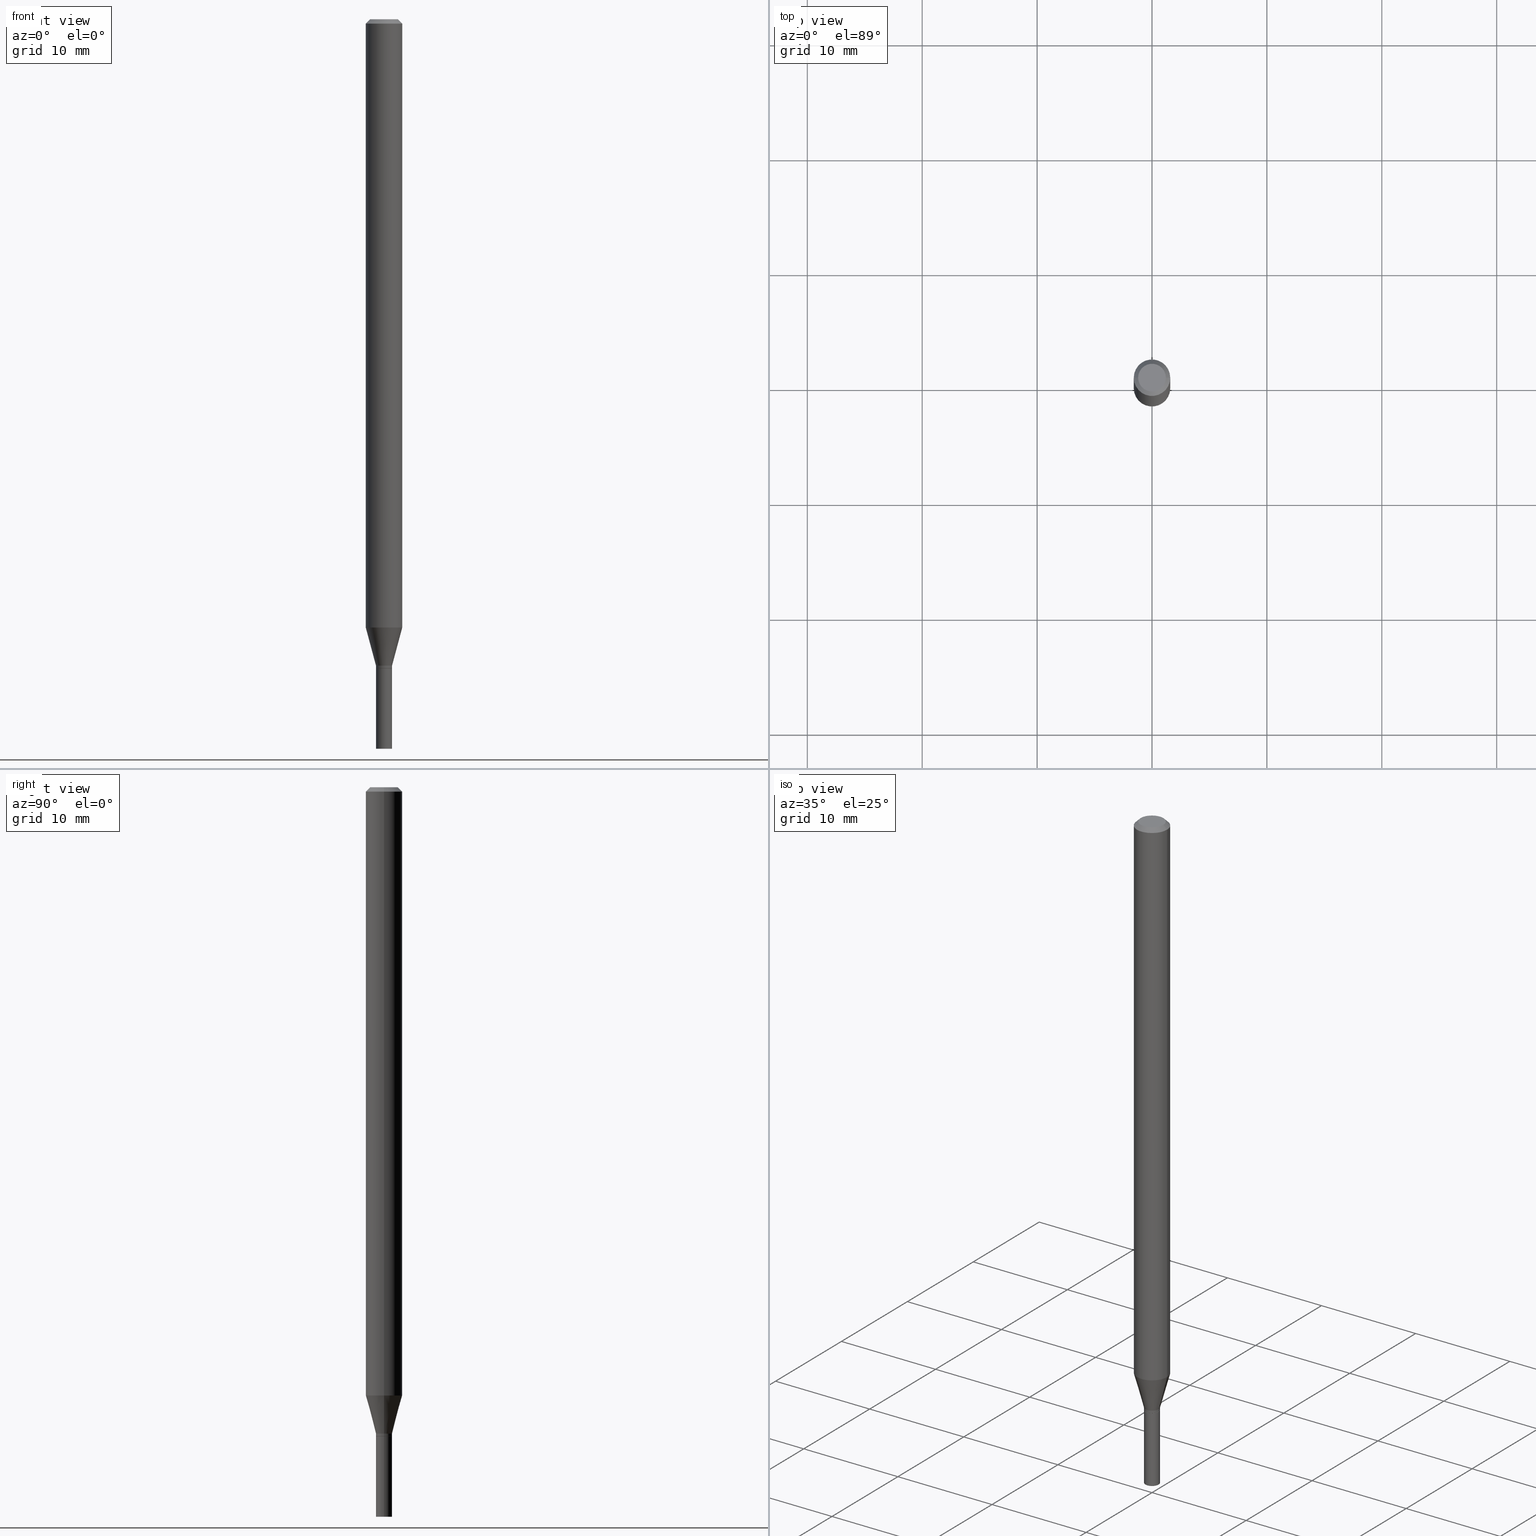
[diagram: canonical four-view strip — front | top / right | iso, engineering-drawing reading convention]
A machine part, canonical four-view strip (front | top / right | iso — engineering-drawing reading convention). The complete STEP part file that produces these views, byte-faithful:
ISO-10303-21;
HEADER;
FILE_DESCRIPTION (( 'STEP AP203' ),
    '1' );
FILE_NAME ('00595.STEP',
    '2024-03-19T21:55:43',
    ( '' ),
    ( '' ),
    'SwSTEP 2.0',
    'SolidWorks 2023',
    '' );
FILE_SCHEMA (( 'CONFIG_CONTROL_DESIGN' ));
ENDSEC;

DATA;
#1 = DIRECTION ( 'NONE',  ( -2.445468806185136597E-29, 3.491481338843145583E-15, 1.000000000000000000 ) ) ;
#2 = ORIENTED_EDGE ( 'NONE', *, *, #121, .F. ) ;
#3 = DIRECTION ( 'NONE',  ( 1.000000000000000000, -6.982962677686265133E-15, 0.000000000000000000 ) ) ;
#4 = EDGE_LOOP ( 'NONE', ( #402, #162, #17, #22 ) ) ;
#5 = DIRECTION ( 'NONE',  ( -2.445468806185136597E-29, 3.491481338843145583E-15, 1.000000000000000000 ) ) ;
#6 = AXIS2_PLACEMENT_3D ( 'NONE', #265, #425, #62 ) ;
#7 = AXIS2_PLACEMENT_3D ( 'NONE', #426, #383, #307 ) ;
#8 = DIRECTION ( 'NONE',  ( 1.000000000000000000, -6.982962677686267499E-15, 4.884662768193073002E-29 ) ) ;
#9 = CC_DESIGN_APPROVAL ( #179, ( #46 ) ) ;
#10 = VERTEX_POINT ( 'NONE', #86 ) ;
#11 = ADVANCED_FACE ( 'NONE', ( #141 ), #298, .T. ) ;
#12 = DIRECTION ( 'NONE',  ( -2.445468806185136597E-29, 3.491481338843145583E-15, 1.000000000000000000 ) ) ;
#13 = ORIENTED_EDGE ( 'NONE', *, *, #132, .F. ) ;
#14 = CARTESIAN_POINT ( 'NONE',  ( -2.090350035857389078E-45, 2.984465851041258834E-31, 8.547849927876517898E-17 ) ) ;
#15 = DIRECTION ( 'NONE',  ( 1.000000000000000000, -6.982962677686266711E-15, 4.876176775795935793E-29 ) ) ;
#16 = CARTESIAN_POINT ( 'NONE',  ( 5.441168093761929600E-29, -7.768545978926000114E-15, -2.225000000000000533 ) ) ;
#17 = ORIENTED_EDGE ( 'NONE', *, *, #442, .T. ) ;
#18 = FACE_OUTER_BOUND ( 'NONE', #459, .T. ) ;
#19 = CONICAL_SURFACE ( 'NONE', #456, 0.02699999999999999969, 0.7853981633974739252 ) ;
#20 = EDGE_LOOP ( 'NONE', ( #244, #381, #225, #338 ) ) ;
#21 = EDGE_CURVE ( 'NONE', #464, #146, #115, .T. ) ;
#22 = ORIENTED_EDGE ( 'NONE', *, *, #213, .F. ) ;
#23 = DIRECTION ( 'NONE',  ( 0.7071067811865454633, -7.319954787623246579E-15, -0.7071067811865493491 ) ) ;
#24 = PERSON_AND_ORGANIZATION_ROLE ( 'creator' ) ;
#25 = DIRECTION ( 'NONE',  ( -2.445468806185136597E-29, 3.491481338843145583E-15, 1.000000000000000000 ) ) ;
#26 = ORIENTED_EDGE ( 'NONE', *, *, #371, .T. ) ;
#27 = LINE ( 'NONE', #299, #327 ) ;
#28 = APPROVAL_DATE_TIME ( #343, #33 ) ;
#29 = CIRCLE ( 'NONE', #319, 0.02750000000000019790 ) ;
#30 =( GEOMETRIC_REPRESENTATION_CONTEXT ( 3 ) GLOBAL_UNCERTAINTY_ASSIGNED_CONTEXT ( ( #34 ) ) GLOBAL_UNIT_ASSIGNED_CONTEXT ( ( #346, #339, #444 ) ) REPRESENTATION_CONTEXT ( 'NONE', 'WORKASPACE' ) );
#31 = DATE_TIME_ROLE ( 'classification_date' ) ;
#32 = DIRECTION ( 'NONE',  ( -2.445468806185136597E-29, 3.491481338843145583E-15, 1.000000000000000000 ) ) ;
#33 = APPROVAL ( #349, 'UNSPECIFIED' ) ;
#34 = UNCERTAINTY_MEASURE_WITH_UNIT (LENGTH_MEASURE( 1.000000000000000082E-05 ), #346, 'distance_accuracy_value', 'NONE');
#35 = DIRECTION ( 'NONE',  ( 1.000000000000000000, -6.982962677686244622E-15, 0.000000000000000000 ) ) ;
#36 = PLANE ( 'NONE',  #45 ) ;
#37 = CIRCLE ( 'NONE', #394, 0.06250000000000000000 ) ;
#38 = ORIENTED_EDGE ( 'NONE', *, *, #124, .F. ) ;
#39 = EDGE_CURVE ( 'NONE', #403, #329, #378, .T. ) ;
#40 = VERTEX_POINT ( 'NONE', #301 ) ;
#41 = DIRECTION ( 'NONE',  ( -2.445468806185136597E-29, 3.491481338843145583E-15, 1.000000000000000000 ) ) ;
#42 = CALENDAR_DATE ( 2024, 19, 3 ) ;
#43 =( LENGTH_UNIT ( ) NAMED_UNIT ( * ) SI_UNIT ( $, .METRE. ) );
#44 = DIRECTION ( 'NONE',  ( 1.000000000000000000, -6.982962677686267499E-15, 4.884662768193073002E-29 ) ) ;
#45 = AXIS2_PLACEMENT_3D ( 'NONE', #345, #296, #119 ) ;
#46 = PRODUCT_DEFINITION_FORMATION_WITH_SPECIFIED_SOURCE ( 'ANY', '', #454, .NOT_KNOWN. ) ;
#47 = DIRECTION ( 'NONE',  ( 1.000000000000000000, -6.982962677686266711E-15, 0.000000000000000000 ) ) ;
#48 = ORIENTED_EDGE ( 'NONE', *, *, #386, .F. ) ;
#49 = DIRECTION ( 'NONE',  ( 1.000000000000000000, -6.982962677686261189E-15, 0.000000000000000000 ) ) ;
#50 = DIRECTION ( 'NONE',  ( 2.445468806185136597E-29, -3.491481338843145583E-15, -1.000000000000000000 ) ) ;
#51 = ADVANCED_FACE ( 'NONE', ( #18 ), #287, .T. ) ;
#52 = CARTESIAN_POINT ( 'NONE',  ( 5.441168093761929600E-29, -7.768545978925998537E-15, -2.225000000000000089 ) ) ;
#53 = ORIENTED_EDGE ( 'NONE', *, *, #371, .F. ) ;
#54 = ADVANCED_FACE ( 'NONE', ( #193 ), #353, .T. ) ;
#55 = CONICAL_SURFACE ( 'NONE', #309, 0.02750000000000019790, 0.2617993877991500740 ) ;
#56 = LOCAL_TIME ( 17, 55, 43.00000000000000000, #294 ) ;
#57 = LINE ( 'NONE', #397, #111 ) ;
#58 = ORIENTED_EDGE ( 'NONE', *, *, #166, .F. ) ;
#59 = APPROVAL_ROLE ( '' ) ;
#60 = ORIENTED_EDGE ( 'NONE', *, *, #172, .F. ) ;
#61 = DIRECTION ( 'NONE',  ( -2.445468806185136877E-29, 3.491481338843145188E-15, 1.000000000000000000 ) ) ;
#62 = DIRECTION ( 'NONE',  ( 1.000000000000000000, -6.982962677686279332E-15, 0.000000000000000000 ) ) ;
#63 = ORIENTED_EDGE ( 'NONE', *, *, #67, .T. ) ;
#64 = DATE_TIME_ROLE ( 'creation_date' ) ;
#65 = CC_DESIGN_PERSON_AND_ORGANIZATION_ASSIGNMENT ( #445, #24, ( #46 ) ) ;
#66 = VECTOR ( 'NONE', #332, 39.37007874015748143 ) ;
#67 = EDGE_CURVE ( 'NONE', #88, #139, #421, .T. ) ;
#68 = VERTEX_POINT ( 'NONE', #258 ) ;
#69 = CIRCLE ( 'NONE', #277, 0.04749999999999999362 ) ;
#70 = VECTOR ( 'NONE', #107, 39.37007874015748854 ) ;
#71 = ORIENTED_EDGE ( 'NONE', *, *, #226, .T. ) ;
#72 = SHAPE_DEFINITION_REPRESENTATION ( #206, #463 ) ;
#73 = CARTESIAN_POINT ( 'NONE',  ( -2.090350035857389078E-45, 2.984465851041258834E-31, 8.547849927876517898E-17 ) ) ;
#74 = DIRECTION ( 'NONE',  ( 2.438088387897960049E-29, -3.491481338843145188E-15, -1.000000000000000000 ) ) ;
#75 = ORIENTED_EDGE ( 'NONE', *, *, #398, .F. ) ;
#76 = DIRECTION ( 'NONE',  ( 1.000000000000000000, -6.982962677686265922E-15, 4.876176775795935793E-29 ) ) ;
#77 = AXIS2_PLACEMENT_3D ( 'NONE', #236, #222, #417 ) ;
#78 = VECTOR ( 'NONE', #235, 39.37007874015747433 ) ;
#79 = EDGE_LOOP ( 'NONE', ( #375, #410 ) ) ;
#80 = EDGE_CURVE ( 'NONE', #146, #240, #466, .T. ) ;
#81 = ORIENTED_EDGE ( 'NONE', *, *, #344, .F. ) ;
#82 = DIRECTION ( 'NONE',  ( -0.2588190451025213501, 5.211531920934551042E-15, 0.9659258262890682012 ) ) ;
#83 = AXIS2_PLACEMENT_3D ( 'NONE', #195, #32, #133 ) ;
#84 = SECURITY_CLASSIFICATION ( '', '', #462 ) ;
#85 = DIRECTION ( 'NONE',  ( -2.445468806185136597E-29, 3.491481338843145583E-15, 1.000000000000000000 ) ) ;
#86 = CARTESIAN_POINT ( 'NONE',  ( 0.02750000000000000014, -7.960577452562371818E-15, -2.225000000000000089 ) ) ;
#87 = CALENDAR_DATE ( 2024, 19, 3 ) ;
#88 = VERTEX_POINT ( 'NONE', #310 ) ;
#89 = DATE_AND_TIME ( #101, #194 ) ;
#90 = EDGE_CURVE ( 'NONE', #10, #439, #446, .T. ) ;
#91 = CARTESIAN_POINT ( 'NONE',  ( 0.06250000000000000000, -4.364351673553916694E-16, 3.047610484872459871E-30 ) ) ;
#92 = APPROVAL_PERSON_ORGANIZATION ( #449, #179, #302 ) ;
#93 = ADVANCED_FACE ( 'NONE', ( #152 ), #431, .F. ) ;
#94 = EDGE_LOOP ( 'NONE', ( #255, #48 ) ) ;
#95 = CARTESIAN_POINT ( 'NONE',  ( 5.416713405700078055E-29, -7.733631165537568465E-15, -2.215000000000000302 ) ) ;
#96 = COORDINATED_UNIVERSAL_TIME_OFFSET ( 5, 0, .BEHIND. ) ;
#97 = ORIENTED_EDGE ( 'NONE', *, *, #326, .F. ) ;
#98 = EDGE_LOOP ( 'NONE', ( #75, #284, #116, #120 ) ) ;
#99 = FACE_OUTER_BOUND ( 'NONE', #164, .T. ) ;
#100 = CIRCLE ( 'NONE', #262, 0.02699999999999999969 ) ;
#101 = CALENDAR_DATE ( 2024, 19, 3 ) ;
#102 = PLANE ( 'NONE',  #428 ) ;
#103 = CC_DESIGN_PERSON_AND_ORGANIZATION_ASSIGNMENT ( #191, #117, ( #84 ) ) ;
#104 = DIRECTION ( 'NONE',  ( -2.438088387897960049E-29, 3.491481338843145188E-15, 1.000000000000000000 ) ) ;
#105 = ADVANCED_FACE ( 'NONE', ( #337 ), #157, .F. ) ;
#106 = LINE ( 'NONE', #175, #66 ) ;
#107 = DIRECTION ( 'NONE',  ( -0.7071067811865454633, 2.468850131082235761E-15, -0.7071067811865493491 ) ) ;
#108 = DIRECTION ( 'NONE',  ( 1.000000000000000000, -6.982962677686266711E-15, 4.876176775795935793E-29 ) ) ;
#109 = AXIS2_PLACEMENT_3D ( 'NONE', #113, #336, #441 ) ;
#110 = EDGE_LOOP ( 'NONE', ( #38, #365 ) ) ;
#111 = VECTOR ( 'NONE', #280, 39.37007874015748143 ) ;
#112 = DIRECTION ( 'NONE',  ( -2.445468806185136597E-29, 3.491481338843145583E-15, 1.000000000000000000 ) ) ;
#113 = CARTESIAN_POINT ( 'NONE',  ( 3.668203209277705088E-31, -5.237222008264718399E-17, -0.01499999999999999944 ) ) ;
#114 = DIRECTION ( 'NONE',  ( -2.445468806185136597E-29, 3.491481338843145583E-15, 1.000000000000000000 ) ) ;
#115 = LINE ( 'NONE', #227, #360 ) ;
#116 = ORIENTED_EDGE ( 'NONE', *, *, #39, .T. ) ;
#117 = PERSON_AND_ORGANIZATION_ROLE ( 'classification_officer' ) ;
#118 = AXIS2_PLACEMENT_3D ( 'NONE', #399, #351, #155 ) ;
#119 = DIRECTION ( 'NONE',  ( 1.000000000000000000, -6.982962677686265922E-15, 4.876176775795935793E-29 ) ) ;
#120 = ORIENTED_EDGE ( 'NONE', *, *, #359, .F. ) ;
#121 = EDGE_CURVE ( 'NONE', #439, #10, #257, .T. ) ;
#122 = COORDINATED_UNIVERSAL_TIME_OFFSET ( 5, 0, .BEHIND. ) ;
#123 = APPLICATION_CONTEXT ( 'configuration controlled 3d designs of mechanical parts and assemblies' ) ;
#124 = EDGE_CURVE ( 'NONE', #460, #216, #100, .T. ) ;
#125 = VECTOR ( 'NONE', #61, 39.37007874015748143 ) ;
#126 = AXIS2_PLACEMENT_3D ( 'NONE', #221, #173, #108 ) ;
#127 = CARTESIAN_POINT ( 'NONE',  ( 0.000000000000000000, 0.000000000000000000, 0.000000000000000000 ) ) ;
#128 = APPROVAL_DATE_TIME ( #306, #407 ) ;
#129 = APPROVAL_ROLE ( '' ) ;
#130 = AXIS2_PLACEMENT_3D ( 'NONE', #52, #1, #281 ) ;
#131 = AXIS2_PLACEMENT_3D ( 'NONE', #177, #12, #405 ) ;
#132 = EDGE_CURVE ( 'NONE', #88, #10, #106, .T. ) ;
#133 = DIRECTION ( 'NONE',  ( 1.000000000000000000, -6.982962677686261189E-15, 0.000000000000000000 ) ) ;
#134 = CARTESIAN_POINT ( 'NONE',  ( 5.097281921544810220E-29, -7.277567664279129507E-15, -2.084378221735090797 ) ) ;
#135 = EDGE_CURVE ( 'NONE', #464, #199, #140, .T. ) ;
#136 = CIRCLE ( 'NONE', #241, 0.02750000000000019790 ) ;
#137 = CARTESIAN_POINT ( 'NONE',  ( -0.02750000000000000014, -8.053225410682903621E-15, -2.500000000000000000 ) ) ;
#138 = ORIENTED_EDGE ( 'NONE', *, *, #432, .F. ) ;
#139 = VERTEX_POINT ( 'NONE', #137 ) ;
#140 = CIRCLE ( 'NONE', #384, 0.04749999999999999362 ) ;
#141 = FACE_OUTER_BOUND ( 'NONE', #318, .T. ) ;
#142 = APPROVAL_PERSON_ORGANIZATION ( #451, #33, #59 ) ;
#143 = ORIENTED_EDGE ( 'NONE', *, *, #386, .T. ) ;
#144 = FACE_OUTER_BOUND ( 'NONE', #4, .T. ) ;
#145 = ORIENTED_EDGE ( 'NONE', *, *, #289, .F. ) ;
#146 = VERTEX_POINT ( 'NONE', #278 ) ;
#147 = CARTESIAN_POINT ( 'NONE',  ( 0.02750000000000019790, -1.920314736363737249E-16, 1.340948613343892047E-30 ) ) ;
#148 = APPROVAL_STATUS ( 'not_yet_approved' ) ;
#149 = ADVANCED_FACE ( 'NONE', ( #99 ), #312, .T. ) ;
#150 = CALENDAR_DATE ( 2024, 19, 3 ) ;
#151 = AXIS2_PLACEMENT_3D ( 'NONE', #248, #219, #370 ) ;
#152 = FACE_OUTER_BOUND ( 'NONE', #94, .T. ) ;
#153 = VECTOR ( 'NONE', #331, 39.37007874015748143 ) ;
#154 = APPROVAL_STATUS ( 'not_yet_approved' ) ;
#155 = DIRECTION ( 'NONE',  ( 1.000000000000000000, -6.982962677686265133E-15, 0.000000000000000000 ) ) ;
#156 = DIRECTION ( 'NONE',  ( -2.445468806185136597E-29, 3.491481338843145583E-15, 1.000000000000000000 ) ) ;
#157 = PLANE ( 'NONE',  #151 ) ;
#158 = DIRECTION ( 'NONE',  ( -2.445468806185136597E-29, 3.491481338843145583E-15, 1.000000000000000000 ) ) ;
#159 = DIRECTION ( 'NONE',  ( 1.000000000000000000, -6.982962677686266711E-15, 0.000000000000000000 ) ) ;
#160 = AXIS2_PLACEMENT_3D ( 'NONE', #415, #156, #159 ) ;
#161 = FACE_OUTER_BOUND ( 'NONE', #416, .T. ) ;
#162 = ORIENTED_EDGE ( 'NONE', *, *, #359, .T. ) ;
#163 = MECHANICAL_CONTEXT ( 'NONE', #123, 'mechanical' ) ;
#164 = EDGE_LOOP ( 'NONE', ( #315, #143, #228, #2 ) ) ;
#165 = CARTESIAN_POINT ( 'NONE',  ( 3.668203209277705088E-31, -5.237222008264718399E-17, -0.01499999999999999944 ) ) ;
#166 = EDGE_CURVE ( 'NONE', #40, #240, #242, .T. ) ;
#167 = DATE_AND_TIME ( #42, #272 ) ;
#168 = APPLICATION_CONTEXT ( 'configuration controlled 3d designs of mechanical parts and assemblies' ) ;
#169 = CIRCLE ( 'NONE', #83, 0.02699999999999999969 ) ;
#170 = VECTOR ( 'NONE', #396, 39.37007874015748143 ) ;
#171 = CARTESIAN_POINT ( 'NONE',  ( -0.06250000000000000000, -3.220880732330825874E-15, -0.01499999999999999944 ) ) ;
#172 = EDGE_CURVE ( 'NONE', #223, #146, #238, .T. ) ;
#173 = DIRECTION ( 'NONE',  ( -2.445468806185136597E-29, 3.491481338843145583E-15, 1.000000000000000000 ) ) ;
#174 = CARTESIAN_POINT ( 'NONE',  ( 0.06250000000000000000, -7.714002831634521177E-15, -2.084378221735090797 ) ) ;
#175 = CARTESIAN_POINT ( 'NONE',  ( 0.02750000000000000014, -1.920314736363723444E-16, 1.340948613343882413E-30 ) ) ;
#176 = AXIS2_PLACEMENT_3D ( 'NONE', #269, #414, #379 ) ;
#177 = CARTESIAN_POINT ( 'NONE',  ( 6.113672015462842613E-29, -8.728703347107864943E-15, -2.500000000000000000 ) ) ;
#178 = CARTESIAN_POINT ( 'NONE',  ( -0.02750000000000000014, 1.953992523340275521E-16, -1.352707149820099181E-30 ) ) ;
#179 = APPROVAL ( #148, 'UNSPECIFIED' ) ;
#180 = DIRECTION ( 'NONE',  ( 1.000000000000000000, -6.982962677686261189E-15, 0.000000000000000000 ) ) ;
#181 = ORIENTED_EDGE ( 'NONE', *, *, #166, .T. ) ;
#182 = ORIENTED_EDGE ( 'NONE', *, *, #80, .T. ) ;
#183 = PERSON_AND_ORGANIZATION ( #198, #395 ) ;
#184 = ADVANCED_FACE ( 'NONE', ( #350 ), #36, .F. ) ;
#185 = ORIENTED_EDGE ( 'NONE', *, *, #90, .T. ) ;
#186 = DIRECTION ( 'NONE',  ( -2.445468806185136597E-29, 3.491481338843145583E-15, 1.000000000000000000 ) ) ;
#187 = PERSON_AND_ORGANIZATION_ROLE ( 'design_owner' ) ;
#188 = DIMENSIONAL_EXPONENTS ( 1.000000000000000000, 0.000000000000000000, 0.000000000000000000, 0.000000000000000000, 0.000000000000000000, 0.000000000000000000, 0.000000000000000000 ) ;
#189 = EDGE_LOOP ( 'NONE', ( #285, #297, #97, #145 ) ) ;
#190 = LENGTH_MEASURE_WITH_UNIT ( LENGTH_MEASURE( 0.02539999999999999897 ), #43 );
#191 = PERSON_AND_ORGANIZATION ( #198, #395 ) ;
#192 = CIRCLE ( 'NONE', #118, 0.02750000000000019790 ) ;
#193 = FACE_OUTER_BOUND ( 'NONE', #20, .T. ) ;
#194 = LOCAL_TIME ( 17, 55, 43.00000000000000000, #259 ) ;
#195 = CARTESIAN_POINT ( 'NONE',  ( 5.441168093761929600E-29, -7.768545978926000114E-15, -2.225000000000000533 ) ) ;
#196 = CC_DESIGN_DATE_AND_TIME_ASSIGNMENT ( #89, #31, ( #84 ) ) ;
#197 = DIRECTION ( 'NONE',  ( -1.000000000000000000, 6.982962677686266711E-15, 0.000000000000000000 ) ) ;
#198 = PERSON ( 'UNSPECIFIED', 'UNSPECIFIED', 'UNSPECIFIED', ('UNSPECIFIED'), ('UNSPECIFIED'), ('UNSPECIFIED') ) ;
#199 = VERTEX_POINT ( 'NONE', #232 ) ;
#200 = FACE_OUTER_BOUND ( 'NONE', #98, .T. ) ;
#201 = VECTOR ( 'NONE', #458, 39.37007874015748143 ) ;
#202 = AXIS2_PLACEMENT_3D ( 'NONE', #134, #391, #211 ) ;
#203 = LOCAL_TIME ( 17, 55, 43.00000000000000000, #204 ) ;
#204 = COORDINATED_UNIVERSAL_TIME_OFFSET ( 5, 0, .BEHIND. ) ;
#205 = EDGE_CURVE ( 'NONE', #216, #460, #169, .T. ) ;
#206 = PRODUCT_DEFINITION_SHAPE ( 'NONE', 'NONE',  #311 ) ;
#207 = ORIENTED_EDGE ( 'NONE', *, *, #380, .T. ) ;
#208 = DIRECTION ( 'NONE',  ( -2.445468806185136597E-29, 3.491481338843145583E-15, 1.000000000000000000 ) ) ;
#209 = DIRECTION ( 'NONE',  ( 0.7071067811865656694, -2.468850131082446387E-15, 0.7071067811865294761 ) ) ;
#210 = DIRECTION ( 'NONE',  ( -1.000000000000000000, 6.982962677686265922E-15, -4.876176775795935793E-29 ) ) ;
#211 = DIRECTION ( 'NONE',  ( 1.000000000000000000, -6.982962677686262766E-15, 0.000000000000000000 ) ) ;
#212 = AXIS2_PLACEMENT_3D ( 'NONE', #245, #41, #429 ) ;
#213 = EDGE_CURVE ( 'NONE', #40, #223, #251, .T. ) ;
#214 = CC_DESIGN_SECURITY_CLASSIFICATION ( #84, ( #46 ) ) ;
#215 = ORIENTED_EDGE ( 'NONE', *, *, #121, .T. ) ;
#216 = VERTEX_POINT ( 'NONE', #316 ) ;
#217 = AXIS2_PLACEMENT_3D ( 'NONE', #420, #158, #387 ) ;
#218 = ORIENTED_EDGE ( 'NONE', *, *, #289, .T. ) ;
#219 = DIRECTION ( 'NONE',  ( 2.438088387897960049E-29, -3.491481338843145188E-15, -1.000000000000000000 ) ) ;
#220 = CC_DESIGN_DATE_AND_TIME_ASSIGNMENT ( #230, #64, ( #311 ) ) ;
#221 = CARTESIAN_POINT ( 'NONE',  ( 0.000000000000000000, 0.000000000000000000, 0.000000000000000000 ) ) ;
#222 = DIRECTION ( 'NONE',  ( -2.445468806185136597E-29, 3.491481338843145583E-15, 1.000000000000000000 ) ) ;
#223 = VERTEX_POINT ( 'NONE', #174 ) ;
#224 = EDGE_LOOP ( 'NONE', ( #138, #435, #218, #81 ) ) ;
#225 = ORIENTED_EDGE ( 'NONE', *, *, #250, .F. ) ;
#226 = EDGE_CURVE ( 'NONE', #240, #146, #37, .T. ) ;
#227 = CARTESIAN_POINT ( 'NONE',  ( 0.06250000000000000000, -4.811533449433679005E-16, -0.01499999999999999944 ) ) ;
#228 = ORIENTED_EDGE ( 'NONE', *, *, #132, .T. ) ;
#229 = CARTESIAN_POINT ( 'NONE',  ( 0.000000000000000000, 0.000000000000000000, 0.000000000000000000 ) ) ;
#230 = DATE_AND_TIME ( #150, #203 ) ;
#231 = PERSON_AND_ORGANIZATION ( #198, #395 ) ;
#232 = CARTESIAN_POINT ( 'NONE',  ( -0.04749999999999999362, 3.578768372314211985E-16, 8.547849927876276309E-17 ) ) ;
#233 = AXIS2_PLACEMENT_3D ( 'NONE', #127, #388, #452 ) ;
#234 = AXIS2_PLACEMENT_3D ( 'NONE', #247, #362, #3 ) ;
#235 = DIRECTION ( 'NONE',  ( 0.2588190451025213501, 1.565188264969621968E-15, 0.9659258262890682012 ) ) ;
#236 = CARTESIAN_POINT ( 'NONE',  ( 5.441168093761929600E-29, -7.768545978926000114E-15, -2.225000000000000533 ) ) ;
#237 = VERTEX_POINT ( 'NONE', #270 ) ;
#238 = LINE ( 'NONE', #91, #367 ) ;
#239 = EDGE_CURVE ( 'NONE', #199, #464, #69, .T. ) ;
#240 = VERTEX_POINT ( 'NONE', #171 ) ;
#241 = AXIS2_PLACEMENT_3D ( 'NONE', #95, #457, #291 ) ;
#242 = LINE ( 'NONE', #321, #201 ) ;
#243 = CALENDAR_DATE ( 2024, 19, 3 ) ;
#244 = ORIENTED_EDGE ( 'NONE', *, *, #326, .T. ) ;
#245 = CARTESIAN_POINT ( 'NONE',  ( 0.000000000000000000, 0.000000000000000000, 0.000000000000000000 ) ) ;
#246 = APPLICATION_PROTOCOL_DEFINITION ( 'international standard', 'config_control_design', 1994, #123 ) ;
#247 = CARTESIAN_POINT ( 'NONE',  ( 5.416713405700078055E-29, -7.733631165537568465E-15, -2.215000000000000302 ) ) ;
#248 = CARTESIAN_POINT ( 'NONE',  ( 1.920314736364267512E-16, 0.02749999999999223205, -2.225000000000000089 ) ) ;
#249 = CARTESIAN_POINT ( 'NONE',  ( -0.02699999999999999969, -7.576699440270773683E-15, -2.225000000000000533 ) ) ;
#250 = EDGE_CURVE ( 'NONE', #329, #68, #29, .T. ) ;
#251 = CIRCLE ( 'NONE', #202, 0.06250000000000000000 ) ;
#252 = CARTESIAN_POINT ( 'NONE',  ( 5.441168093761929600E-29, -7.768545978926000114E-15, -2.225000000000000533 ) ) ;
#253 = CYLINDRICAL_SURFACE ( 'NONE', #126, 0.06250000000000000000 ) ;
#254 = ADVANCED_FACE ( 'NONE', ( #263 ), #347, .T. ) ;
#255 = ORIENTED_EDGE ( 'NONE', *, *, #67, .F. ) ;
#256 = ORIENTED_EDGE ( 'NONE', *, *, #411, .T. ) ;
#257 = CIRCLE ( 'NONE', #130, 0.02750000000000000014 ) ;
#258 = CARTESIAN_POINT ( 'NONE',  ( -0.02750000000000019790, -7.185855183816302830E-15, -2.215000000000000302 ) ) ;
#259 = COORDINATED_UNIVERSAL_TIME_OFFSET ( 5, 0, .BEHIND. ) ;
#260 = CC_DESIGN_PERSON_AND_ORGANIZATION_ASSIGNMENT ( #317, #382, ( #46 ) ) ;
#261 = CARTESIAN_POINT ( 'NONE',  ( 6.113672015462842613E-29, -8.728703347107864943E-15, -2.500000000000000000 ) ) ;
#262 = AXIS2_PLACEMENT_3D ( 'NONE', #252, #363, #49 ) ;
#263 = FACE_OUTER_BOUND ( 'NONE', #224, .T. ) ;
#264 = CARTESIAN_POINT ( 'NONE',  ( 0.02699999999999999969, -7.957085971223528811E-15, -2.225000000000000533 ) ) ;
#265 = CARTESIAN_POINT ( 'NONE',  ( 5.441168093761929600E-29, -7.768545978925998537E-15, -2.225000000000000089 ) ) ;
#266 = ADVANCED_FACE ( 'NONE', ( #333 ), #19, .T. ) ;
#267 = EDGE_LOOP ( 'NONE', ( #63, #256, #366, #13 ) ) ;
#268 = ORIENTED_EDGE ( 'NONE', *, *, #135, .F. ) ;
#269 = CARTESIAN_POINT ( 'NONE',  ( 0.000000000000000000, 0.000000000000000000, 0.000000000000000000 ) ) ;
#270 = CARTESIAN_POINT ( 'NONE',  ( -0.02750000000000019790, -7.571400985922549703E-15, -2.224500000000000366 ) ) ;
#271 = AXIS2_PLACEMENT_3D ( 'NONE', #450, #50, #197 ) ;
#272 = LOCAL_TIME ( 17, 55, 43.00000000000000000, #122 ) ;
#273 = ADVANCED_FACE ( 'NONE', ( #144 ), #55, .T. ) ;
#274 = CARTESIAN_POINT ( 'NONE',  ( 0.02750000000000019790, -7.958831711892951103E-15, -2.224500000000000366 ) ) ;
#275 = DIRECTION ( 'NONE',  ( -2.445468806185136597E-29, 3.491481338843145583E-15, 1.000000000000000000 ) ) ;
#276 = LINE ( 'NONE', #249, #170 ) ;
#277 = AXIS2_PLACEMENT_3D ( 'NONE', #73, #208, #44 ) ;
#278 = CARTESIAN_POINT ( 'NONE',  ( 0.06250000000000000000, -4.888073874380388472E-16, -0.01499999999999999944 ) ) ;
#279 = ADVANCED_FACE ( 'NONE', ( #376 ), #413, .T. ) ;
#280 = DIRECTION ( 'NONE',  ( -2.445468806185136877E-29, 3.491481338843145188E-15, 1.000000000000000000 ) ) ;
#281 = DIRECTION ( 'NONE',  ( 1.000000000000000000, -6.982962677686279332E-15, 0.000000000000000000 ) ) ;
#282 = ORIENTED_EDGE ( 'NONE', *, *, #239, .F. ) ;
#283 = CARTESIAN_POINT ( 'NONE',  ( 0.000000000000000000, 0.000000000000000000, 0.000000000000000000 ) ) ;
#284 = ORIENTED_EDGE ( 'NONE', *, *, #344, .T. ) ;
#285 = ORIENTED_EDGE ( 'NONE', *, *, #124, .T. ) ;
#286 = CARTESIAN_POINT ( 'NONE',  ( 0.04749999999999999362, -4.035134999187576651E-16, 8.547849927876775510E-17 ) ) ;
#287 = CONICAL_SURFACE ( 'NONE', #271, 0.06250000000000000000, 0.7853981633974456145 ) ;
#288 = AXIS2_PLACEMENT_3D ( 'NONE', #324, #5, #330 ) ;
#289 = EDGE_CURVE ( 'NONE', #460, #403, #27, .T. ) ;
#290 = ORIENTED_EDGE ( 'NONE', *, *, #213, .T. ) ;
#291 = DIRECTION ( 'NONE',  ( 1.000000000000000000, -6.982962677686265133E-15, 0.000000000000000000 ) ) ;
#292 = EDGE_LOOP ( 'NONE', ( #185, #215 ) ) ;
#293 = DESIGN_CONTEXT ( 'detailed design', #168, 'design' ) ;
#294 = COORDINATED_UNIVERSAL_TIME_OFFSET ( 5, 0, .BEHIND. ) ;
#295 = FACE_OUTER_BOUND ( 'NONE', #335, .T. ) ;
#296 = DIRECTION ( 'NONE',  ( -2.438088387897960049E-29, 3.491481338843145188E-15, 1.000000000000000000 ) ) ;
#297 = ORIENTED_EDGE ( 'NONE', *, *, #432, .T. ) ;
#298 = CONICAL_SURFACE ( 'NONE', #109, 0.06250000000000000000, 0.7853981633974456145 ) ;
#299 = CARTESIAN_POINT ( 'NONE',  ( 0.02699999999999999969, -7.957085971223528811E-15, -2.225000000000000533 ) ) ;
#300 = AXIS2_PLACEMENT_3D ( 'NONE', #283, #85, #15 ) ;
#301 = CARTESIAN_POINT ( 'NONE',  ( -0.06250000000000000000, -6.833478454429066891E-15, -2.084378221735090797 ) ) ;
#302 = APPROVAL_ROLE ( '' ) ;
#303 = MANIFOLD_SOLID_BREP ( 'Body-Move/Copy2[2]', #334 ) ;
#304 = CARTESIAN_POINT ( 'NONE',  ( 0.02750000000000019790, -7.925662639173941747E-15, -2.215000000000000302 ) ) ;
#305 = CC_DESIGN_PERSON_AND_ORGANIZATION_ASSIGNMENT ( #418, #340, ( #311 ) ) ;
#306 = DATE_AND_TIME ( #87, #56 ) ;
#307 = DIRECTION ( 'NONE',  ( 1.000000000000000000, -6.982962677686266711E-15, 4.876176775795935793E-29 ) ) ;
#308 = MANIFOLD_SOLID_BREP ( 'Body-Move/Copy2[1]', #389 ) ;
#309 = AXIS2_PLACEMENT_3D ( 'NONE', #440, #114, #408 ) ;
#310 = CARTESIAN_POINT ( 'NONE',  ( 0.02750000000000000014, -8.920734820744236646E-15, -2.500000000000000000 ) ) ;
#311 = PRODUCT_DEFINITION ( 'UNKNOWN', '', #46, #293 ) ;
#312 = CYLINDRICAL_SURFACE ( 'NONE', #212, 0.02750000000000000014 ) ;
#313 = CARTESIAN_POINT ( 'NONE',  ( 6.198122052593289668E-29, -8.607766087339451973E-15, -2.500000000000000000 ) ) ;
#314 = APPROVAL_DATE_TIME ( #167, #179 ) ;
#315 = ORIENTED_EDGE ( 'NONE', *, *, #411, .F. ) ;
#316 = CARTESIAN_POINT ( 'NONE',  ( -0.02699999999999999969, -7.574050213096661693E-15, -2.225000000000000533 ) ) ;
#317 = PERSON_AND_ORGANIZATION ( #198, #395 ) ;
#318 = EDGE_LOOP ( 'NONE', ( #268, #424, #182, #369 ) ) ;
#319 = AXIS2_PLACEMENT_3D ( 'NONE', #323, #275, #455 ) ;
#320 = CIRCLE ( 'NONE', #131, 0.02750000000000000014 ) ;
#321 = CARTESIAN_POINT ( 'NONE',  ( -0.06250000000000000000, 4.440892098500626162E-16, -3.074334431409316114E-30 ) ) ;
#322 = PRODUCT_RELATED_PRODUCT_CATEGORY ( 'detail', '', ( #454 ) ) ;
#323 = CARTESIAN_POINT ( 'NONE',  ( 5.416713405700078055E-29, -7.733631165537568465E-15, -2.215000000000000302 ) ) ;
#324 = CARTESIAN_POINT ( 'NONE',  ( 5.097281921544810220E-29, -7.277567664279129507E-15, -2.084378221735090797 ) ) ;
#325 = DIRECTION ( 'NONE',  ( -2.445468806185136597E-29, 3.491481338843145583E-15, 1.000000000000000000 ) ) ;
#326 = EDGE_CURVE ( 'NONE', #403, #237, #192, .T. ) ;
#327 = VECTOR ( 'NONE', #209, 39.37007874015748143 ) ;
#328 = LINE ( 'NONE', #401, #348 ) ;
#329 = VERTEX_POINT ( 'NONE', #304 ) ;
#330 = DIRECTION ( 'NONE',  ( 1.000000000000000000, -6.982962677686262766E-15, 0.000000000000000000 ) ) ;
#331 = DIRECTION ( 'NONE',  ( -2.445468806185136877E-29, 3.491481338843145188E-15, 1.000000000000000000 ) ) ;
#332 = DIRECTION ( 'NONE',  ( -2.445468806185136877E-29, 3.491481338843145188E-15, 1.000000000000000000 ) ) ;
#333 = FACE_OUTER_BOUND ( 'NONE', #189, .T. ) ;
#334 = CLOSED_SHELL ( 'NONE', ( #54, #266, #11, #364, #427, #273, #352, #51, #419, #184, #254, #461 ) ) ;
#335 = EDGE_LOOP ( 'NONE', ( #26, #181, #356, #60 ) ) ;
#336 = DIRECTION ( 'NONE',  ( 2.445468806185136597E-29, -3.491481338843145583E-15, -1.000000000000000000 ) ) ;
#337 = FACE_OUTER_BOUND ( 'NONE', #292, .T. ) ;
#338 = ORIENTED_EDGE ( 'NONE', *, *, #39, .F. ) ;
#339 =( NAMED_UNIT ( * ) PLANE_ANGLE_UNIT ( ) SI_UNIT ( $, .RADIAN. ) );
#340 = PERSON_AND_ORGANIZATION_ROLE ( 'creator' ) ;
#341 = LINE ( 'NONE', #453, #78 ) ;
#342 = DIRECTION ( 'NONE',  ( 1.000000000000000000, -6.982962677686266711E-15, 4.876176775795935793E-29 ) ) ;
#343 = DATE_AND_TIME ( #243, #422 ) ;
#344 = EDGE_CURVE ( 'NONE', #237, #403, #433, .T. ) ;
#345 = CARTESIAN_POINT ( 'NONE',  ( 5.441168093761929600E-29, -7.768545978926000114E-15, -2.225000000000000533 ) ) ;
#346 =( CONVERSION_BASED_UNIT ( 'INCH', #190 ) LENGTH_UNIT ( ) NAMED_UNIT ( #188 ) );
#347 = CONICAL_SURFACE ( 'NONE', #77, 0.02699999999999999969, 0.7853981633974739252 ) ;
#348 = VECTOR ( 'NONE', #82, 39.37007874015747433 ) ;
#349 = APPROVAL_STATUS ( 'not_yet_approved' ) ;
#350 = FACE_OUTER_BOUND ( 'NONE', #110, .T. ) ;
#351 = DIRECTION ( 'NONE',  ( -2.445468806185136597E-29, 3.491481338843145583E-15, 1.000000000000000000 ) ) ;
#352 = ADVANCED_FACE ( 'NONE', ( #161 ), #354, .T. ) ;
#353 = CYLINDRICAL_SURFACE ( 'NONE', #233, 0.02750000000000019790 ) ;
#354 = CYLINDRICAL_SURFACE ( 'NONE', #7, 0.06250000000000000000 ) ;
#355 = ORIENTED_EDGE ( 'NONE', *, *, #172, .T. ) ;
#356 = ORIENTED_EDGE ( 'NONE', *, *, #80, .F. ) ;
#357 = APPLICATION_PROTOCOL_DEFINITION ( 'international standard', 'config_control_design', 1994, #168 ) ;
#358 = ORIENTED_EDGE ( 'NONE', *, *, #21, .F. ) ;
#359 = EDGE_CURVE ( 'NONE', #68, #329, #136, .T. ) ;
#360 = VECTOR ( 'NONE', #23, 39.37007874015748854 ) ;
#361 = APPROVAL_PERSON_ORGANIZATION ( #231, #407, #129 ) ;
#362 = DIRECTION ( 'NONE',  ( -2.445468806185136597E-29, 3.491481338843145583E-15, 1.000000000000000000 ) ) ;
#363 = DIRECTION ( 'NONE',  ( -2.445468806185136597E-29, 3.491481338843145583E-15, 1.000000000000000000 ) ) ;
#364 = ADVANCED_FACE ( 'NONE', ( #295 ), #253, .T. ) ;
#365 = ORIENTED_EDGE ( 'NONE', *, *, #205, .F. ) ;
#366 = ORIENTED_EDGE ( 'NONE', *, *, #90, .F. ) ;
#367 = VECTOR ( 'NONE', #423, 39.37007874015748143 ) ;
#368 = LINE ( 'NONE', #178, #153 ) ;
#369 = ORIENTED_EDGE ( 'NONE', *, *, #436, .F. ) ;
#370 = DIRECTION ( 'NONE',  ( -1.000000000000000000, 6.982962677686265922E-15, -4.876176775795935793E-29 ) ) ;
#371 = EDGE_CURVE ( 'NONE', #223, #40, #434, .T. ) ;
#372 = ORIENTED_EDGE ( 'NONE', *, *, #226, .F. ) ;
#373 = CARTESIAN_POINT ( 'NONE',  ( -0.06250000000000000000, 3.840629472727444916E-16, -0.01499999999999999944 ) ) ;
#374 = AXIS2_PLACEMENT_3D ( 'NONE', #229, #186, #342 ) ;
#375 = ORIENTED_EDGE ( 'NONE', *, *, #239, .T. ) ;
#376 = FACE_OUTER_BOUND ( 'NONE', #267, .T. ) ;
#377 = ORIENTED_EDGE ( 'NONE', *, *, #436, .T. ) ;
#378 = LINE ( 'NONE', #147, #125 ) ;
#379 = DIRECTION ( 'NONE',  ( 1.000000000000000000, 0.000000000000000000, 0.000000000000000000 ) ) ;
#380 = EDGE_CURVE ( 'NONE', #68, #40, #328, .T. ) ;
#381 = ORIENTED_EDGE ( 'NONE', *, *, #398, .T. ) ;
#382 = PERSON_AND_ORGANIZATION_ROLE ( 'design_supplier' ) ;
#383 = DIRECTION ( 'NONE',  ( -2.445468806185136597E-29, 3.491481338843145583E-15, 1.000000000000000000 ) ) ;
#384 = AXIS2_PLACEMENT_3D ( 'NONE', #14, #325, #8 ) ;
#385 = CONICAL_SURFACE ( 'NONE', #234, 0.02750000000000019790, 0.2617993877991500740 ) ;
#386 = EDGE_CURVE ( 'NONE', #139, #88, #320, .T. ) ;
#387 = DIRECTION ( 'NONE',  ( 1.000000000000000000, -6.982962677686265133E-15, 0.000000000000000000 ) ) ;
#388 = DIRECTION ( 'NONE',  ( -2.445468806185136597E-29, 3.491481338843145583E-15, 1.000000000000000000 ) ) ;
#389 = CLOSED_SHELL ( 'NONE', ( #279, #93, #149, #105 ) ) ;
#390 = ORIENTED_EDGE ( 'NONE', *, *, #250, .T. ) ;
#391 = DIRECTION ( 'NONE',  ( -2.445468806185136597E-29, 3.491481338843145583E-15, 1.000000000000000000 ) ) ;
#392 = CC_DESIGN_PERSON_AND_ORGANIZATION_ASSIGNMENT ( #183, #187, ( #454 ) ) ;
#393 = CARTESIAN_POINT ( 'NONE',  ( 3.316907271900976096E-16, 0.04749999999999999362, -1.231061139556668131E-16 ) ) ;
#394 = AXIS2_PLACEMENT_3D ( 'NONE', #165, #465, #47 ) ;
#395 = ORGANIZATION ( 'UNSPECIFIED', 'UNSPECIFIED', '' ) ;
#396 = DIRECTION ( 'NONE',  ( -0.7071067811865656694, 7.493145998870420424E-15, 0.7071067811865294761 ) ) ;
#397 = CARTESIAN_POINT ( 'NONE',  ( -0.02750000000000019790, 1.953992523340289573E-16, -1.352707149820108815E-30 ) ) ;
#398 = EDGE_CURVE ( 'NONE', #237, #68, #57, .T. ) ;
#399 = CARTESIAN_POINT ( 'NONE',  ( 5.439945359358836799E-29, -7.766800238256577822E-15, -2.224500000000000366 ) ) ;
#400 = LINE ( 'NONE', #373, #70 ) ;
#401 = CARTESIAN_POINT ( 'NONE',  ( -0.02750000000000019790, -7.538231913203540346E-15, -2.215000000000000302 ) ) ;
#402 = ORIENTED_EDGE ( 'NONE', *, *, #380, .F. ) ;
#403 = VERTEX_POINT ( 'NONE', #274 ) ;
#404 = CC_DESIGN_APPROVAL ( #407, ( #84 ) ) ;
#405 = DIRECTION ( 'NONE',  ( 1.000000000000000000, -6.982962677686244622E-15, 0.000000000000000000 ) ) ;
#406 = CARTESIAN_POINT ( 'NONE',  ( -0.02750000000000000014, -8.053225410682903621E-15, -2.225000000000000089 ) ) ;
#407 = APPROVAL ( #154, 'UNSPECIFIED' ) ;
#408 = DIRECTION ( 'NONE',  ( 1.000000000000000000, -6.982962677686265133E-15, 0.000000000000000000 ) ) ;
#409 = AXIS2_PLACEMENT_3D ( 'NONE', #313, #104, #76 ) ;
#410 = ORIENTED_EDGE ( 'NONE', *, *, #135, .T. ) ;
#411 = EDGE_CURVE ( 'NONE', #139, #439, #368, .T. ) ;
#412 = CC_DESIGN_APPROVAL ( #33, ( #311 ) ) ;
#413 = CYLINDRICAL_SURFACE ( 'NONE', #374, 0.02750000000000000014 ) ;
#414 = DIRECTION ( 'NONE',  ( 0.000000000000000000, 0.000000000000000000, 1.000000000000000000 ) ) ;
#415 = CARTESIAN_POINT ( 'NONE',  ( 3.668203209277705088E-31, -5.237222008264718399E-17, -0.01499999999999999944 ) ) ;
#416 = EDGE_LOOP ( 'NONE', ( #58, #290, #355, #372 ) ) ;
#417 = DIRECTION ( 'NONE',  ( 1.000000000000000000, -6.982962677686261189E-15, 0.000000000000000000 ) ) ;
#418 = PERSON_AND_ORGANIZATION ( #198, #395 ) ;
#419 = ADVANCED_FACE ( 'NONE', ( #430 ), #102, .F. ) ;
#420 = CARTESIAN_POINT ( 'NONE',  ( 5.439945359358836799E-29, -7.766800238256577822E-15, -2.224500000000000366 ) ) ;
#421 = CIRCLE ( 'NONE', #437, 0.02750000000000000014 ) ;
#422 = LOCAL_TIME ( 17, 55, 43.00000000000000000, #96 ) ;
#423 = DIRECTION ( 'NONE',  ( -2.445468806185136877E-29, 3.491481338843145188E-15, 1.000000000000000000 ) ) ;
#424 = ORIENTED_EDGE ( 'NONE', *, *, #21, .T. ) ;
#425 = DIRECTION ( 'NONE',  ( -2.445468806185136597E-29, 3.491481338843145583E-15, 1.000000000000000000 ) ) ;
#426 = CARTESIAN_POINT ( 'NONE',  ( 0.000000000000000000, 0.000000000000000000, 0.000000000000000000 ) ) ;
#427 = ADVANCED_FACE ( 'NONE', ( #448 ), #385, .T. ) ;
#428 = AXIS2_PLACEMENT_3D ( 'NONE', #393, #74, #210 ) ;
#429 = DIRECTION ( 'NONE',  ( 1.000000000000000000, -6.982962677686266711E-15, 4.876176775795935793E-29 ) ) ;
#430 = FACE_OUTER_BOUND ( 'NONE', #79, .T. ) ;
#431 = PLANE ( 'NONE',  #409 ) ;
#432 = EDGE_CURVE ( 'NONE', #216, #237, #276, .T. ) ;
#433 = CIRCLE ( 'NONE', #217, 0.02750000000000019790 ) ;
#434 = CIRCLE ( 'NONE', #288, 0.06250000000000000000 ) ;
#435 = ORIENTED_EDGE ( 'NONE', *, *, #205, .T. ) ;
#436 = EDGE_CURVE ( 'NONE', #199, #240, #400, .T. ) ;
#437 = AXIS2_PLACEMENT_3D ( 'NONE', #261, #25, #35 ) ;
#438 = CYLINDRICAL_SURFACE ( 'NONE', #300, 0.02750000000000019790 ) ;
#439 = VERTEX_POINT ( 'NONE', #406 ) ;
#440 = CARTESIAN_POINT ( 'NONE',  ( 5.416713405700078055E-29, -7.733631165537568465E-15, -2.215000000000000302 ) ) ;
#441 = DIRECTION ( 'NONE',  ( -1.000000000000000000, 6.982962677686266711E-15, 0.000000000000000000 ) ) ;
#442 = EDGE_CURVE ( 'NONE', #329, #223, #341, .T. ) ;
#443 = EDGE_LOOP ( 'NONE', ( #390, #207, #53, #447 ) ) ;
#444 =( NAMED_UNIT ( * ) SI_UNIT ( $, .STERADIAN. ) SOLID_ANGLE_UNIT ( ) );
#445 = PERSON_AND_ORGANIZATION ( #198, #395 ) ;
#446 = CIRCLE ( 'NONE', #6, 0.02750000000000000014 ) ;
#447 = ORIENTED_EDGE ( 'NONE', *, *, #442, .F. ) ;
#448 = FACE_OUTER_BOUND ( 'NONE', #443, .T. ) ;
#449 = PERSON_AND_ORGANIZATION ( #198, #395 ) ;
#450 = CARTESIAN_POINT ( 'NONE',  ( 3.668203209277705088E-31, -5.237222008264718399E-17, -0.01499999999999999944 ) ) ;
#451 = PERSON_AND_ORGANIZATION ( #198, #395 ) ;
#452 = DIRECTION ( 'NONE',  ( 1.000000000000000000, -6.982962677686266711E-15, 4.876176775795935793E-29 ) ) ;
#453 = CARTESIAN_POINT ( 'NONE',  ( 0.02750000000000019790, -7.925662639173941747E-15, -2.215000000000000302 ) ) ;
#454 = PRODUCT ( '00595', '00595', '', ( #163 ) ) ;
#455 = DIRECTION ( 'NONE',  ( 1.000000000000000000, -6.982962677686265133E-15, 0.000000000000000000 ) ) ;
#456 = AXIS2_PLACEMENT_3D ( 'NONE', #16, #112, #180 ) ;
#457 = DIRECTION ( 'NONE',  ( -2.445468806185136597E-29, 3.491481338843145583E-15, 1.000000000000000000 ) ) ;
#458 = DIRECTION ( 'NONE',  ( -2.445468806185136877E-29, 3.491481338843145188E-15, 1.000000000000000000 ) ) ;
#459 = EDGE_LOOP ( 'NONE', ( #358, #282, #377, #71 ) ) ;
#460 = VERTEX_POINT ( 'NONE', #264 ) ;
#461 = ADVANCED_FACE ( 'NONE', ( #200 ), #438, .T. ) ;
#462 = SECURITY_CLASSIFICATION_LEVEL ( 'unclassified' ) ;
#463 = ADVANCED_BREP_SHAPE_REPRESENTATION ( '00595', ( #308, #303, #176 ), #30 ) ;
#464 = VERTEX_POINT ( 'NONE', #286 ) ;
#465 = DIRECTION ( 'NONE',  ( -2.445468806185136597E-29, 3.491481338843145583E-15, 1.000000000000000000 ) ) ;
#466 = CIRCLE ( 'NONE', #160, 0.06250000000000000000 ) ;
ENDSEC;
END-ISO-10303-21;
